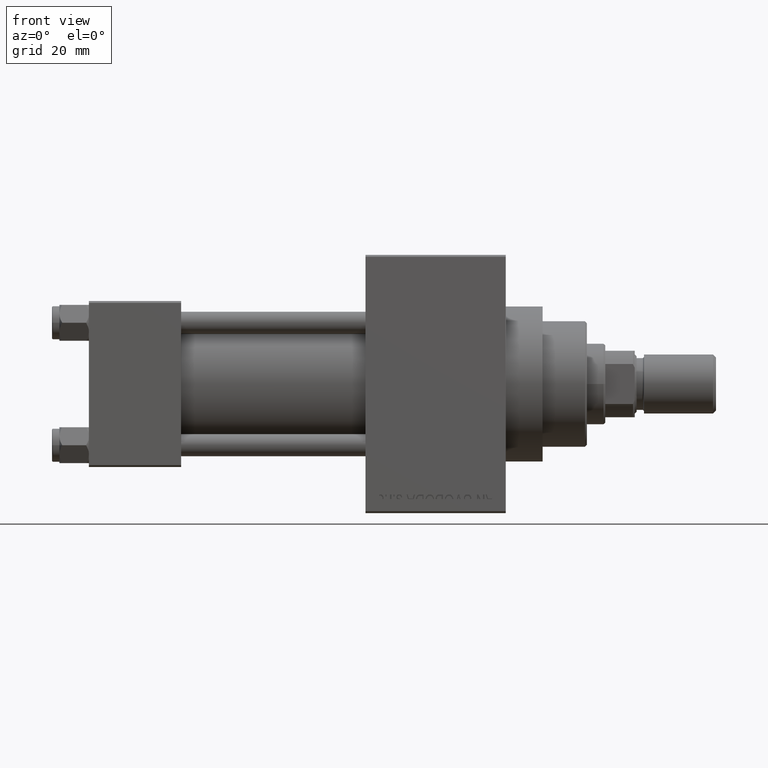
[diagram: clean part render]
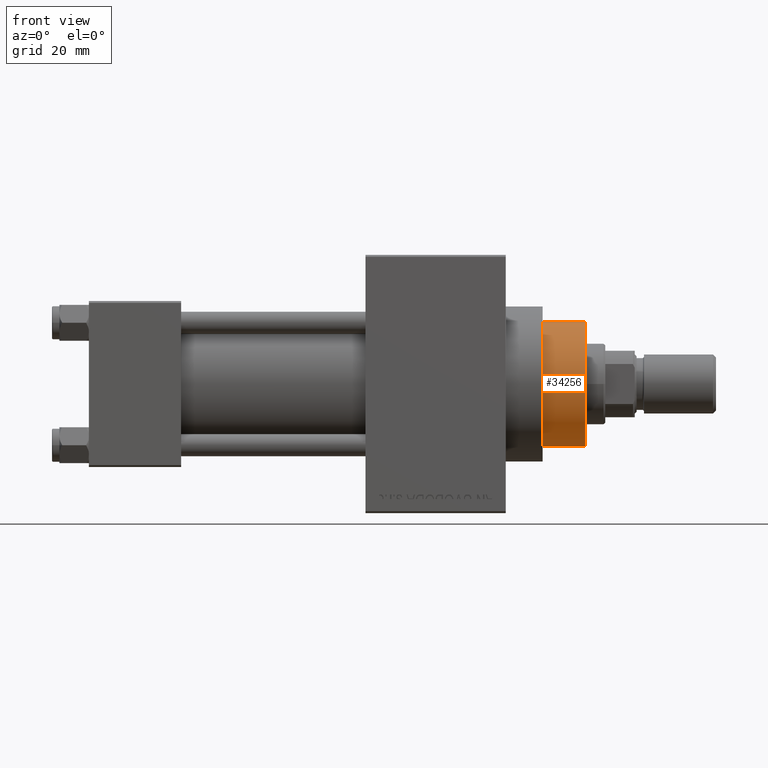
[diagram: same view with one face highlighted and labeled with its STEP entity id]
A machine part, front view. The second image highlights one B-rep face of the part: STEP entity #34256.
In plain terms, the highlighted cylindrical surface (partial cylindrical patch) has radius 17 mm, axis along (-1, 0, 0).
Its self-contained STEP definition (entity closure, byte-faithful):
#1735 = CIRCLE ( 'NONE', #27878, 17.00000000000000000 ) ;
#2241 = DIRECTION ( 'NONE',  ( -0.000000000000000000, -0.000000000000000000, -1.000000000000000000 ) ) ;
#4193 = CARTESIAN_POINT ( 'NONE',  ( -17.00000000000000000, 0.000000000000000000, 55.26000000000000512 ) ) ;
#4677 = ORIENTED_EDGE ( 'NONE', *, *, #43461, .T. ) ;
#5857 = VERTEX_POINT ( 'NONE', #46699 ) ;
#6704 = CARTESIAN_POINT ( 'NONE',  ( 0.000000000000000000, 0.000000000000000000, 55.26000000000000512 ) ) ;
#7065 = CARTESIAN_POINT ( 'NONE',  ( 17.00000000000000000, 2.081899558550500280E-15, 43.25999999999999801 ) ) ;
#7564 = VERTEX_POINT ( 'NONE', #15744 ) ;
#7767 = EDGE_CURVE ( 'NONE', #7564, #41257, #34969, .T. ) ;
#8284 = DIRECTION ( 'NONE',  ( -0.000000000000000000, -0.000000000000000000, -1.000000000000000000 ) ) ;
#8645 = EDGE_CURVE ( 'NONE', #41257, #5857, #1735, .T. ) ;
#10092 = CYLINDRICAL_SURFACE ( 'NONE', #39315, 17.00000000000000000 ) ;
#11305 = CIRCLE ( 'NONE', #35123, 17.00000000000000000 ) ;
#15744 = CARTESIAN_POINT ( 'NONE',  ( 17.00000000000000000, 2.081899558550500280E-15, 54.76000000000001222 ) ) ;
#19846 = CARTESIAN_POINT ( 'NONE',  ( 0.000000000000000000, 0.000000000000000000, 43.25999999999999801 ) ) ;
#20084 = DIRECTION ( 'NONE',  ( 0.000000000000000000, 0.000000000000000000, 1.000000000000000000 ) ) ;
#21842 = EDGE_LOOP ( 'NONE', ( #4677, #21978, #33601, #27769 ) ) ;
#21959 = CARTESIAN_POINT ( 'NONE',  ( 0.000000000000000000, 0.000000000000000000, 54.76000000000001222 ) ) ;
#21978 = ORIENTED_EDGE ( 'NONE', *, *, #7767, .T. ) ;
#25091 = EDGE_CURVE ( 'NONE', #30660, #5857, #37179, .T. ) ;
#26990 = CARTESIAN_POINT ( 'NONE',  ( -17.00000000000000000, 0.000000000000000000, 54.76000000000001222 ) ) ;
#27769 = ORIENTED_EDGE ( 'NONE', *, *, #25091, .F. ) ;
#27878 = AXIS2_PLACEMENT_3D ( 'NONE', #19846, #20084, #45578 ) ;
#28380 = FACE_OUTER_BOUND ( 'NONE', #21842, .T. ) ;
#30660 = VERTEX_POINT ( 'NONE', #26990 ) ;
#31523 = DIRECTION ( 'NONE',  ( -0.000000000000000000, -0.000000000000000000, -1.000000000000000000 ) ) ;
#33601 = ORIENTED_EDGE ( 'NONE', *, *, #8645, .T. ) ;
#34256 = ADVANCED_FACE ( 'NONE', ( #28380 ), #10092, .T. ) ;
#34860 = VECTOR ( 'NONE', #2241, 1000.000000000000000 ) ;
#34969 = LINE ( 'NONE', #46290, #34860 ) ;
#35123 = AXIS2_PLACEMENT_3D ( 'NONE', #21959, #40473, #47233 ) ;
#37179 = LINE ( 'NONE', #4193, #38300 ) ;
#38300 = VECTOR ( 'NONE', #8284, 1000.000000000000000 ) ;
#39315 = AXIS2_PLACEMENT_3D ( 'NONE', #6704, #31523, #42592 ) ;
#40473 = DIRECTION ( 'NONE',  ( 0.000000000000000000, 0.000000000000000000, -1.000000000000000000 ) ) ;
#41257 = VERTEX_POINT ( 'NONE', #7065 ) ;
#42592 = DIRECTION ( 'NONE',  ( -1.000000000000000000, 0.000000000000000000, 0.000000000000000000 ) ) ;
#43461 = EDGE_CURVE ( 'NONE', #30660, #7564, #11305, .T. ) ;
#45578 = DIRECTION ( 'NONE',  ( 1.000000000000000000, 0.000000000000000000, 0.000000000000000000 ) ) ;
#46290 = CARTESIAN_POINT ( 'NONE',  ( 17.00000000000000000, 2.081899558550500280E-15, 55.26000000000000512 ) ) ;
#46699 = CARTESIAN_POINT ( 'NONE',  ( -17.00000000000000000, 0.000000000000000000, 43.25999999999999801 ) ) ;
#47233 = DIRECTION ( 'NONE',  ( 1.000000000000000000, 0.000000000000000000, 0.000000000000000000 ) ) ;